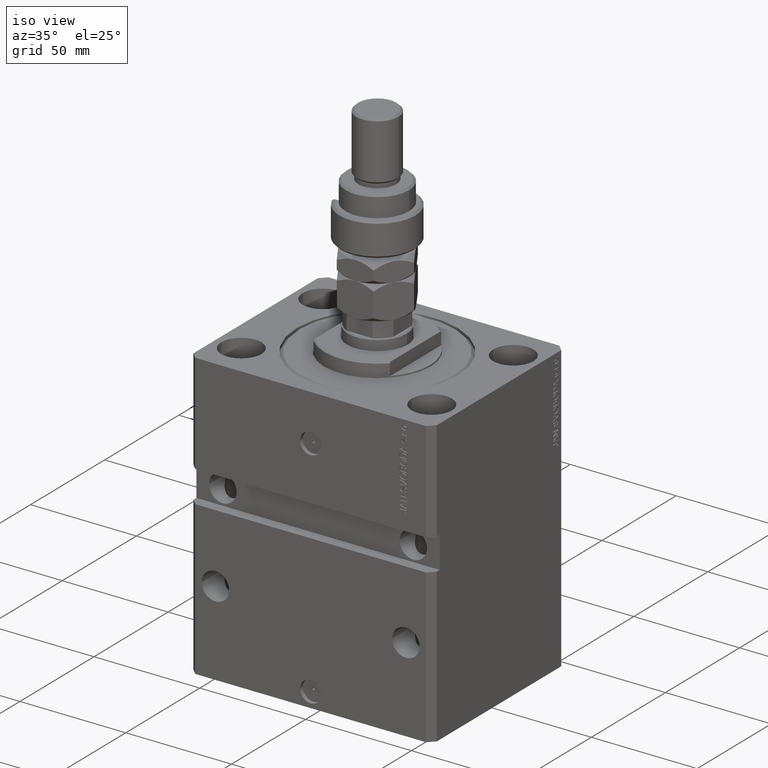
[diagram: clean part render]
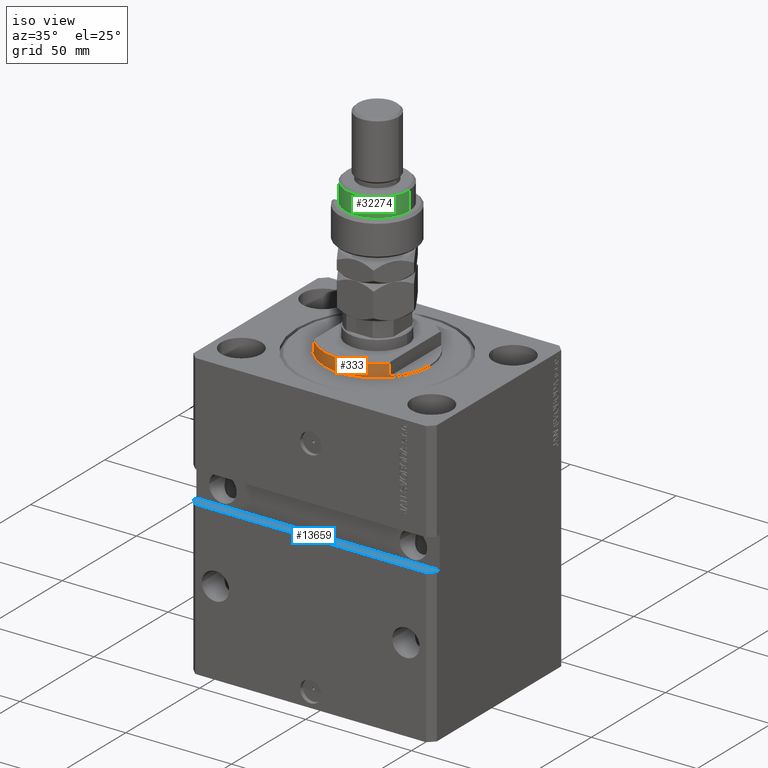
[diagram: same view with three faces highlighted in distinct colors, each labeled with its STEP entity id]
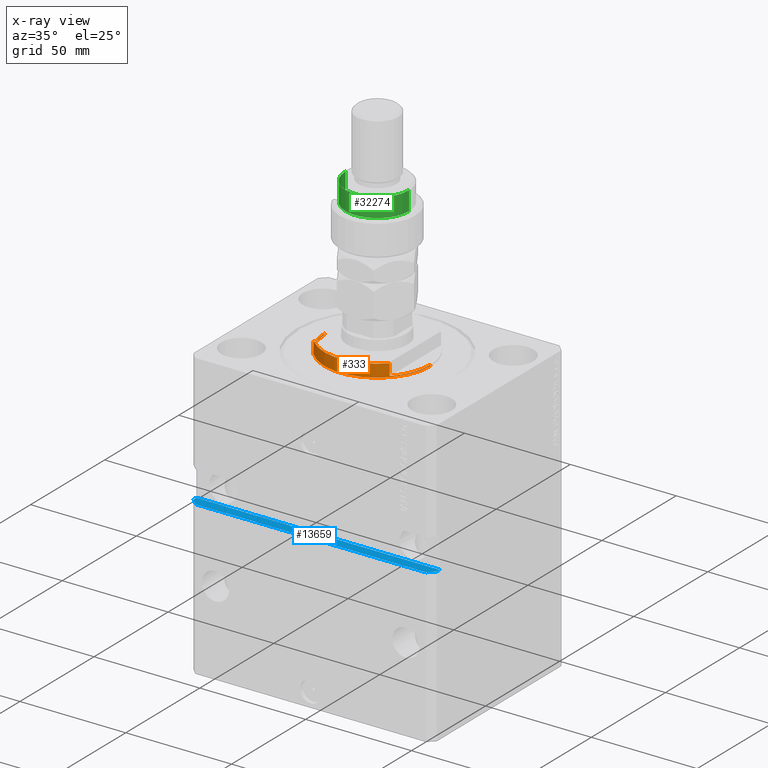
[diagram: x-ray of the same camera — body ghosted, the three highlighted faces saturated]
A machine part, iso view with three faces highlighted in distinct colors.
The next image is the same camera in x-ray (body ghosted, the three faces saturated) — at least one of them is partly hidden behind the body in this view.
Their STEP definitions:

[orange] entity #333 — the highlighted cylindrical surface (partial cylindrical patch) has radius 25 mm, axis along (0, 0, -1).
#333 = ADVANCED_FACE ( 'NONE', ( #2993 ), #30844, .T. ) ;
#2993 = FACE_OUTER_BOUND ( 'NONE', #18140, .T. ) ;
#3467 = VERTEX_POINT ( 'NONE', #24366 ) ;
#4336 = VECTOR ( 'NONE', #24620, 1000.000000000000000 ) ;
#4636 = EDGE_CURVE ( 'NONE', #48792, #5331, #44250, .T. ) ;
#5331 = VERTEX_POINT ( 'NONE', #40911 ) ;
#5591 = EDGE_CURVE ( 'NONE', #7398, #23543, #42929, .T. ) ;
#5661 = DIRECTION ( 'NONE',  ( -1.000000000000000000, 0.000000000000000000, 0.000000000000000000 ) ) ;
#7398 = VERTEX_POINT ( 'NONE', #30477 ) ;
#8060 = LINE ( 'NONE', #48814, #4336 ) ;
#8999 = AXIS2_PLACEMENT_3D ( 'NONE', #49846, #33771, #17767 ) ;
#9597 = DIRECTION ( 'NONE',  ( 0.000000000000000000, 0.000000000000000000, -1.000000000000000000 ) ) ;
#10483 = AXIS2_PLACEMENT_3D ( 'NONE', #19053, #47169, #15607 ) ;
#10550 = DIRECTION ( 'NONE',  ( -1.000000000000000000, 0.000000000000000000, 0.000000000000000000 ) ) ;
#10811 = DIRECTION ( 'NONE',  ( 0.000000000000000000, 0.000000000000000000, 1.000000000000000000 ) ) ;
#12473 = EDGE_CURVE ( 'NONE', #28575, #48792, #23400, .T. ) ;
#12673 = DIRECTION ( 'NONE',  ( 0.000000000000000000, 0.000000000000000000, -1.000000000000000000 ) ) ;
#12765 = ORIENTED_EDGE ( 'NONE', *, *, #30777, .T. ) ;
#14457 = VECTOR ( 'NONE', #12673, 1000.000000000000000 ) ;
#15227 = VERTEX_POINT ( 'NONE', #44127 ) ;
#15607 = DIRECTION ( 'NONE',  ( 1.000000000000000000, 0.000000000000000000, 0.000000000000000000 ) ) ;
#15791 = CARTESIAN_POINT ( 'NONE',  ( 18.00000000000000000, -17.34935157289747920, -6.499999999999958256 ) ) ;
#16431 = DIRECTION ( 'NONE',  ( 0.000000000000000000, 0.000000000000000000, -1.000000000000000000 ) ) ;
#16769 = EDGE_CURVE ( 'NONE', #26916, #15227, #18587, .T. ) ;
#16883 = CARTESIAN_POINT ( 'NONE',  ( -18.00000000000000000, -17.34935157289747920, -7.000000000000000000 ) ) ;
#17141 = ORIENTED_EDGE ( 'NONE', *, *, #47853, .T. ) ;
#17767 = DIRECTION ( 'NONE',  ( 1.000000000000000000, 0.000000000000000000, 0.000000000000000000 ) ) ;
#18140 = EDGE_LOOP ( 'NONE', ( #38824, #41334, #12765, #17141, #34878, #27276, #28677, #35580 ) ) ;
#18456 = CARTESIAN_POINT ( 'NONE',  ( 0.000000000000000000, 0.000000000000000000, -6.499999999999958256 ) ) ;
#18587 = CIRCLE ( 'NONE', #28608, 25.00000000000000000 ) ;
#18760 = DIRECTION ( 'NONE',  ( 0.000000000000000000, 0.000000000000000000, -1.000000000000000000 ) ) ;
#19053 = CARTESIAN_POINT ( 'NONE',  ( 0.000000000000000000, 0.000000000000000000, -7.000000000000000000 ) ) ;
#19992 = CARTESIAN_POINT ( 'NONE',  ( 25.00000000000000000, 0.000000000000000000, -7.000000000000000000 ) ) ;
#22017 = CIRCLE ( 'NONE', #41322, 25.00000000000000000 ) ;
#22683 = CARTESIAN_POINT ( 'NONE',  ( 18.00000000000000000, -17.34935157289747920, -7.000000000000000000 ) ) ;
#23400 = LINE ( 'NONE', #19992, #47745 ) ;
#23442 = EDGE_CURVE ( 'NONE', #28575, #7398, #22017, .T. ) ;
#23543 = VERTEX_POINT ( 'NONE', #15791 ) ;
#24366 = CARTESIAN_POINT ( 'NONE',  ( -18.00000000000000000, -17.34935157289747920, -6.499999999999956479 ) ) ;
#24620 = DIRECTION ( 'NONE',  ( -0.000000000000000000, -0.000000000000000000, 1.000000000000000000 ) ) ;
#26677 = CARTESIAN_POINT ( 'NONE',  ( 0.000000000000000000, 0.000000000000000000, -1.000000000000000000 ) ) ;
#26916 = VERTEX_POINT ( 'NONE', #29740 ) ;
#27276 = ORIENTED_EDGE ( 'NONE', *, *, #23442, .F. ) ;
#28122 = DIRECTION ( 'NONE',  ( -0.000000000000000000, -0.000000000000000000, 1.000000000000000000 ) ) ;
#28575 = VERTEX_POINT ( 'NONE', #28671 ) ;
#28608 = AXIS2_PLACEMENT_3D ( 'NONE', #26677, #9597, #5661 ) ;
#28671 = CARTESIAN_POINT ( 'NONE',  ( 25.00000000000000000, 0.000000000000000000, -1.000000000000000000 ) ) ;
#28677 = ORIENTED_EDGE ( 'NONE', *, *, #12473, .T. ) ;
#29740 = CARTESIAN_POINT ( 'NONE',  ( -18.00000000000000000, -17.34935157289747920, -1.000000000000000000 ) ) ;
#30477 = CARTESIAN_POINT ( 'NONE',  ( 18.00000000000000000, -17.34935157289747920, -1.000000000000000000 ) ) ;
#30777 = EDGE_CURVE ( 'NONE', #26916, #3467, #32626, .T. ) ;
#30844 = CYLINDRICAL_SURFACE ( 'NONE', #10483, 25.00000000000000000 ) ;
#32626 = LINE ( 'NONE', #16883, #14457 ) ;
#33574 = EDGE_CURVE ( 'NONE', #15227, #5331, #8060, .T. ) ;
#33771 = DIRECTION ( 'NONE',  ( -0.000000000000000000, -0.000000000000000000, -1.000000000000000000 ) ) ;
#34878 = ORIENTED_EDGE ( 'NONE', *, *, #5591, .F. ) ;
#35580 = ORIENTED_EDGE ( 'NONE', *, *, #4636, .T. ) ;
#35812 = CIRCLE ( 'NONE', #40833, 25.00000000000000000 ) ;
#36138 = DIRECTION ( 'NONE',  ( -1.000000000000000000, 0.000000000000000000, 0.000000000000000000 ) ) ;
#38824 = ORIENTED_EDGE ( 'NONE', *, *, #33574, .F. ) ;
#39250 = VECTOR ( 'NONE', #18760, 1000.000000000000000 ) ;
#40833 = AXIS2_PLACEMENT_3D ( 'NONE', #18456, #10811, #10550 ) ;
#40911 = CARTESIAN_POINT ( 'NONE',  ( -25.00000000000000000, 3.061616997868383043E-15, -0.4999999999999995559 ) ) ;
#41322 = AXIS2_PLACEMENT_3D ( 'NONE', #48768, #16431, #36138 ) ;
#41334 = ORIENTED_EDGE ( 'NONE', *, *, #16769, .F. ) ;
#42929 = LINE ( 'NONE', #22683, #39250 ) ;
#44127 = CARTESIAN_POINT ( 'NONE',  ( -25.00000000000000000, 3.061616997868383043E-15, -1.000000000000000000 ) ) ;
#44250 = CIRCLE ( 'NONE', #8999, 25.00000000000000000 ) ;
#47169 = DIRECTION ( 'NONE',  ( -0.000000000000000000, -0.000000000000000000, 1.000000000000000000 ) ) ;
#47745 = VECTOR ( 'NONE', #28122, 1000.000000000000000 ) ;
#47853 = EDGE_CURVE ( 'NONE', #3467, #23543, #35812, .T. ) ;
#48768 = CARTESIAN_POINT ( 'NONE',  ( 0.000000000000000000, 0.000000000000000000, -1.000000000000000000 ) ) ;
#48792 = VERTEX_POINT ( 'NONE', #48905 ) ;
#48814 = CARTESIAN_POINT ( 'NONE',  ( -25.00000000000000000, 3.061616997868383043E-15, -7.000000000000000000 ) ) ;
#48905 = CARTESIAN_POINT ( 'NONE',  ( 25.00000000000000000, 0.000000000000000000, -0.4999999999999995559 ) ) ;
#49846 = CARTESIAN_POINT ( 'NONE',  ( 0.000000000000000000, 0.000000000000000000, -0.4999999999999995559 ) ) ;

[blue] entity #13659 — the highlighted planar face has unit normal (0, 0, -1).
#796 = LINE ( 'NONE', #49197, #46382 ) ;
#1487 = VECTOR ( 'NONE', #48754, 1000.000000000000000 ) ;
#4422 = ORIENTED_EDGE ( 'NONE', *, *, #39116, .T. ) ;
#4709 = DIRECTION ( 'NONE',  ( 0.7071067811865491270, -0.7071067811865459074, 4.266555594249397400E-17 ) ) ;
#7602 = VECTOR ( 'NONE', #47309, 1000.000000000000000 ) ;
#7630 = CARTESIAN_POINT ( 'NONE',  ( -57.50000000000000711, -40.00000000000000000, -62.50000000000000000 ) ) ;
#7840 = FACE_OUTER_BOUND ( 'NONE', #30723, .T. ) ;
#7933 = CARTESIAN_POINT ( 'NONE',  ( -57.50000000000000711, -42.00000000000000711, -62.50000000000000000 ) ) ;
#8592 = DIRECTION ( 'NONE',  ( 1.000000000000000000, 1.206764157201257045E-16, 6.033820786006285224E-17 ) ) ;
#9428 = VECTOR ( 'NONE', #8592, 1000.000000000000000 ) ;
#9795 = EDGE_CURVE ( 'NONE', #11756, #26013, #44805, .T. ) ;
#10479 = ORIENTED_EDGE ( 'NONE', *, *, #24991, .F. ) ;
#10767 = LINE ( 'NONE', #26536, #7602 ) ;
#11756 = VERTEX_POINT ( 'NONE', #39561 ) ;
#13167 = DIRECTION ( 'NONE',  ( 1.176083712526788232E-16, -1.000000000000000000, -0.000000000000000000 ) ) ;
#13659 = ADVANCED_FACE ( 'NONE', ( #7840 ), #15743, .F. ) ;
#15021 = LINE ( 'NONE', #7630, #39394 ) ;
#15284 = DIRECTION ( 'NONE',  ( 1.000000000000000000, 1.206764157201257045E-16, 6.033820786006285224E-17 ) ) ;
#15743 = PLANE ( 'NONE',  #31865 ) ;
#20058 = ORIENTED_EDGE ( 'NONE', *, *, #28189, .T. ) ;
#20579 = ORIENTED_EDGE ( 'NONE', *, *, #51851, .T. ) ;
#22411 = CARTESIAN_POINT ( 'NONE',  ( 57.50000000000000711, -39.99999999999998579, -62.49999999999999289 ) ) ;
#24991 = EDGE_CURVE ( 'NONE', #11756, #43302, #15021, .T. ) ;
#25641 = CARTESIAN_POINT ( 'NONE',  ( -54.50000000000000711, -45.00000000000000000, -62.50000000000000000 ) ) ;
#26013 = VERTEX_POINT ( 'NONE', #42636 ) ;
#26536 = CARTESIAN_POINT ( 'NONE',  ( 54.50000000000000711, -44.99999999999998579, -62.50000000000000000 ) ) ;
#28189 = EDGE_CURVE ( 'NONE', #38475, #41142, #10767, .T. ) ;
#29281 = VERTEX_POINT ( 'NONE', #25641 ) ;
#30410 = ORIENTED_EDGE ( 'NONE', *, *, #9795, .T. ) ;
#30551 = VECTOR ( 'NONE', #4709, 1000.000000000000000 ) ;
#30723 = EDGE_LOOP ( 'NONE', ( #20058, #37816, #10479, #30410, #4422, #20579 ) ) ;
#31865 = AXIS2_PLACEMENT_3D ( 'NONE', #32000, #40174, #36478 ) ;
#32000 = CARTESIAN_POINT ( 'NONE',  ( -57.50000000000000711, -40.00000000000000000, -62.50000000000000000 ) ) ;
#33534 = CARTESIAN_POINT ( 'NONE',  ( -57.50000000000000711, -45.00000000000000000, -62.50000000000000000 ) ) ;
#35549 = LINE ( 'NONE', #7933, #30551 ) ;
#36478 = DIRECTION ( 'NONE',  ( -1.000000000000000000, 0.000000000000000000, -6.033820786006285224E-17 ) ) ;
#37486 = LINE ( 'NONE', #33534, #9428 ) ;
#37816 = ORIENTED_EDGE ( 'NONE', *, *, #51663, .F. ) ;
#38475 = VERTEX_POINT ( 'NONE', #50439 ) ;
#39116 = EDGE_CURVE ( 'NONE', #26013, #29281, #35549, .T. ) ;
#39394 = VECTOR ( 'NONE', #15284, 1000.000000000000000 ) ;
#39561 = CARTESIAN_POINT ( 'NONE',  ( -57.50000000000000711, -40.00000000000000000, -62.50000000000000000 ) ) ;
#40174 = DIRECTION ( 'NONE',  ( 6.033820786006285224E-17, 7.096278350727574851E-33, -1.000000000000000000 ) ) ;
#41142 = VERTEX_POINT ( 'NONE', #47305 ) ;
#42636 = CARTESIAN_POINT ( 'NONE',  ( -57.50000000000000711, -42.00000000000000711, -62.50000000000000000 ) ) ;
#43302 = VERTEX_POINT ( 'NONE', #22411 ) ;
#44805 = LINE ( 'NONE', #48497, #1487 ) ;
#46382 = VECTOR ( 'NONE', #13167, 1000.000000000000000 ) ;
#47305 = CARTESIAN_POINT ( 'NONE',  ( 57.50000000000000711, -41.99999999999998579, -62.49999999999999289 ) ) ;
#47309 = DIRECTION ( 'NONE',  ( 0.7071067811865483499, 0.7071067811865466846, 4.266555594249394319E-17 ) ) ;
#48497 = CARTESIAN_POINT ( 'NONE',  ( -57.50000000000000711, -40.00000000000000000, -62.50000000000000000 ) ) ;
#48754 = DIRECTION ( 'NONE',  ( 1.176083712526788232E-16, -1.000000000000000000, -0.000000000000000000 ) ) ;
#49197 = CARTESIAN_POINT ( 'NONE',  ( 57.50000000000000711, -39.99999999999998579, -62.49999999999999289 ) ) ;
#50439 = CARTESIAN_POINT ( 'NONE',  ( 54.49999999999997868, -44.99999999999998579, -62.49999999999999289 ) ) ;
#51663 = EDGE_CURVE ( 'NONE', #43302, #41142, #796, .T. ) ;
#51851 = EDGE_CURVE ( 'NONE', #29281, #38475, #37486, .T. ) ;

[green] entity #32274 — the highlighted cylindrical surface (partial cylindrical patch) has radius 15 mm, axis along (-0, -0, -1).
#767 = DIRECTION ( 'NONE',  ( 0.000000000000000000, 0.000000000000000000, -1.000000000000000000 ) ) ;
#1081 = CARTESIAN_POINT ( 'NONE',  ( 15.00000000000000000, 1.836970198721029589E-15, 16.00000000000000000 ) ) ;
#1287 = DIRECTION ( 'NONE',  ( -1.000000000000000000, 0.000000000000000000, 0.000000000000000000 ) ) ;
#1597 = AXIS2_PLACEMENT_3D ( 'NONE', #4728, #767, #1287 ) ;
#2362 = CARTESIAN_POINT ( 'NONE',  ( 0.000000000000000000, 0.000000000000000000, 26.00000000000000355 ) ) ;
#2457 = ORIENTED_EDGE ( 'NONE', *, *, #13422, .F. ) ;
#2617 = AXIS2_PLACEMENT_3D ( 'NONE', #50886, #34818, #47706 ) ;
#4728 = CARTESIAN_POINT ( 'NONE',  ( 0.000000000000000000, 0.000000000000000000, 17.50000000000000000 ) ) ;
#5791 = DIRECTION ( 'NONE',  ( -0.000000000000000000, -0.000000000000000000, -1.000000000000000000 ) ) ;
#6445 = VERTEX_POINT ( 'NONE', #51312 ) ;
#9032 = VECTOR ( 'NONE', #38137, 1000.000000000000000 ) ;
#10328 = EDGE_CURVE ( 'NONE', #51866, #14666, #34444, .T. ) ;
#10689 = DIRECTION ( 'NONE',  ( 1.000000000000000000, 0.000000000000000000, 0.000000000000000000 ) ) ;
#11095 = VECTOR ( 'NONE', #30773, 1000.000000000000000 ) ;
#13317 = CIRCLE ( 'NONE', #31757, 15.00000000000000000 ) ;
#13422 = EDGE_CURVE ( 'NONE', #35735, #14666, #15042, .T. ) ;
#14647 = ORIENTED_EDGE ( 'NONE', *, *, #24176, .T. ) ;
#14666 = VERTEX_POINT ( 'NONE', #27735 ) ;
#15042 = CIRCLE ( 'NONE', #1597, 15.00000000000000000 ) ;
#15285 = LINE ( 'NONE', #34736, #11095 ) ;
#15756 = CARTESIAN_POINT ( 'NONE',  ( 15.00000000000000000, 1.836970198721029589E-15, 24.99999999999997868 ) ) ;
#16885 = EDGE_CURVE ( 'NONE', #36713, #51866, #29426, .T. ) ;
#17630 = DIRECTION ( 'NONE',  ( -1.000000000000000000, 0.000000000000000000, 0.000000000000000000 ) ) ;
#17977 = ORIENTED_EDGE ( 'NONE', *, *, #41599, .T. ) ;
#18069 = DIRECTION ( 'NONE',  ( 0.000000000000000000, 0.000000000000000000, 1.000000000000000000 ) ) ;
#18332 = CARTESIAN_POINT ( 'NONE',  ( 0.000000000000000000, 0.000000000000000000, 16.00000000000000000 ) ) ;
#21682 = CARTESIAN_POINT ( 'NONE',  ( -12.99038105676658006, -7.500000000000000000, 26.00000000000000355 ) ) ;
#24176 = EDGE_CURVE ( 'NONE', #6445, #50777, #13317, .T. ) ;
#25500 = CYLINDRICAL_SURFACE ( 'NONE', #41328, 15.00000000000000000 ) ;
#26042 = CARTESIAN_POINT ( 'NONE',  ( -15.00000000000000000, 0.000000000000000000, 26.00000000000000355 ) ) ;
#27735 = CARTESIAN_POINT ( 'NONE',  ( -15.00000000000000000, 0.000000000000000000, 17.50000000000000000 ) ) ;
#28432 = ORIENTED_EDGE ( 'NONE', *, *, #10328, .T. ) ;
#29426 = CIRCLE ( 'NONE', #2617, 15.00000000000000000 ) ;
#30773 = DIRECTION ( 'NONE',  ( -0.000000000000000000, -0.000000000000000000, -1.000000000000000000 ) ) ;
#31478 = VECTOR ( 'NONE', #45612, 1000.000000000000000 ) ;
#31757 = AXIS2_PLACEMENT_3D ( 'NONE', #18332, #18069, #10689 ) ;
#32094 = ORIENTED_EDGE ( 'NONE', *, *, #16885, .T. ) ;
#32274 = ADVANCED_FACE ( 'NONE', ( #45761 ), #25500, .T. ) ;
#34444 = LINE ( 'NONE', #26042, #9032 ) ;
#34736 = CARTESIAN_POINT ( 'NONE',  ( 15.00000000000000000, 1.836970198721029589E-15, 26.00000000000000355 ) ) ;
#34818 = DIRECTION ( 'NONE',  ( 0.000000000000000000, 0.000000000000000000, -1.000000000000000000 ) ) ;
#35384 = EDGE_CURVE ( 'NONE', #36713, #50777, #15285, .T. ) ;
#35735 = VERTEX_POINT ( 'NONE', #43555 ) ;
#36713 = VERTEX_POINT ( 'NONE', #15756 ) ;
#37968 = LINE ( 'NONE', #21682, #31478 ) ;
#38137 = DIRECTION ( 'NONE',  ( -0.000000000000000000, -0.000000000000000000, -1.000000000000000000 ) ) ;
#41328 = AXIS2_PLACEMENT_3D ( 'NONE', #2362, #5791, #17630 ) ;
#41599 = EDGE_CURVE ( 'NONE', #35735, #6445, #37968, .T. ) ;
#42796 = ORIENTED_EDGE ( 'NONE', *, *, #35384, .F. ) ;
#43555 = CARTESIAN_POINT ( 'NONE',  ( -12.99038105676658006, -7.500000000000000000, 17.50000000000000000 ) ) ;
#45139 = CARTESIAN_POINT ( 'NONE',  ( -15.00000000000000000, 0.000000000000000000, 24.99999999999997868 ) ) ;
#45612 = DIRECTION ( 'NONE',  ( -0.000000000000000000, -0.000000000000000000, -1.000000000000000000 ) ) ;
#45761 = FACE_OUTER_BOUND ( 'NONE', #51653, .T. ) ;
#47706 = DIRECTION ( 'NONE',  ( 1.000000000000000000, 0.000000000000000000, 0.000000000000000000 ) ) ;
#50777 = VERTEX_POINT ( 'NONE', #1081 ) ;
#50886 = CARTESIAN_POINT ( 'NONE',  ( 0.000000000000000000, 0.000000000000000000, 24.99999999999997868 ) ) ;
#51312 = CARTESIAN_POINT ( 'NONE',  ( -12.99038105676658006, -7.500000000000000000, 16.00000000000000000 ) ) ;
#51653 = EDGE_LOOP ( 'NONE', ( #42796, #32094, #28432, #2457, #17977, #14647 ) ) ;
#51866 = VERTEX_POINT ( 'NONE', #45139 ) ;